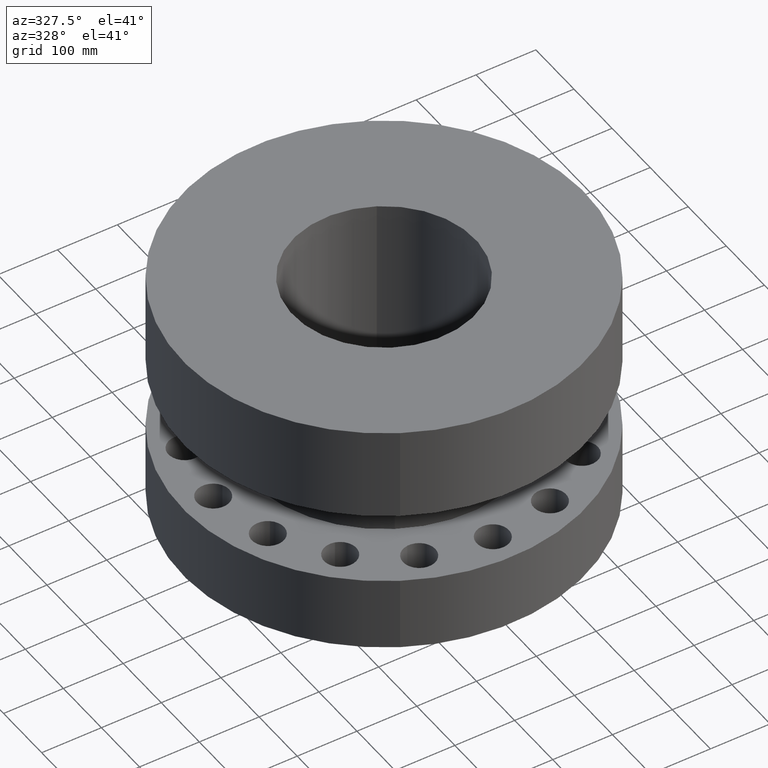
[diagram: clean part render]
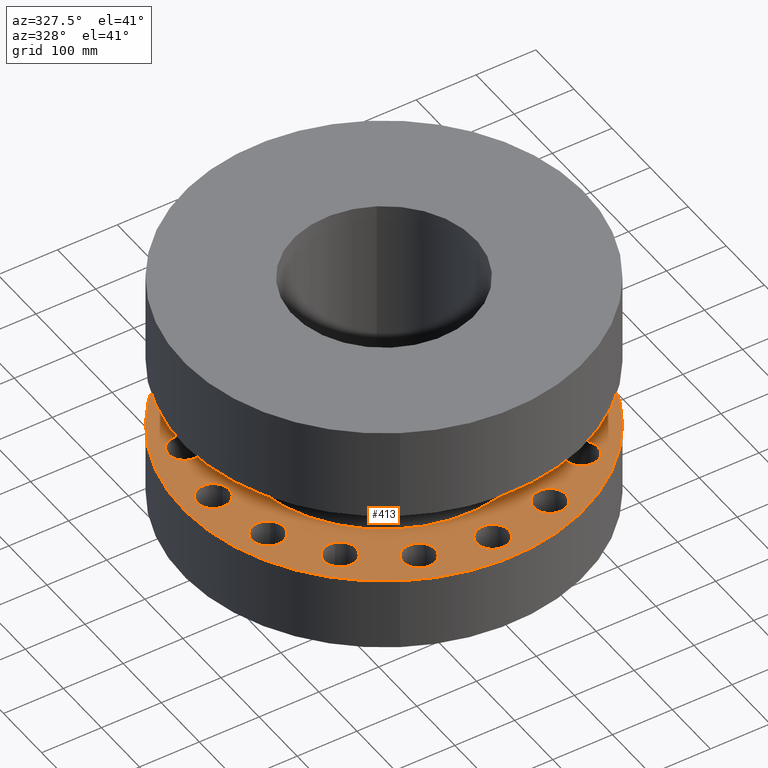
[diagram: same view with one face highlighted and labeled with its STEP entity id]
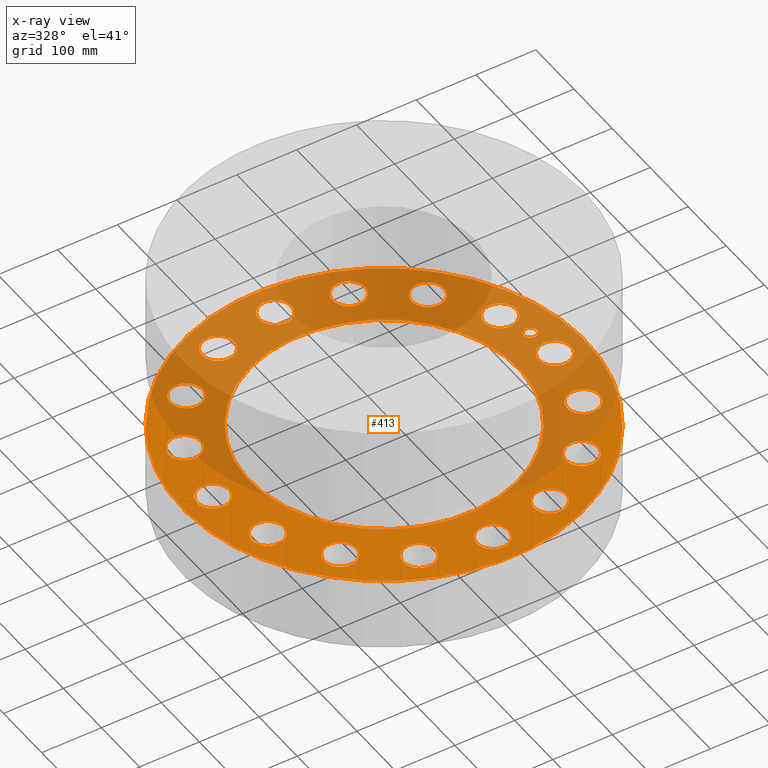
[diagram: x-ray of the same camera — body ghosted, the highlighted face saturated]
A machine part, auxiliary view. The second image highlights one B-rep face of the part: STEP entity #413.
The next image is the same camera in x-ray: the body ghosted, the highlighted face saturated — about 56% of this face is hidden behind the body in this view.
In plain terms, the highlighted planar face has unit normal (0, 0, -1).
Its self-contained STEP definition (entity closure, byte-faithful):
#65=AXIS2_PLACEMENT_3D('Circle Axis2P3D',#63,#64,$) ;
#78=AXIS2_PLACEMENT_3D('Plane Axis2P3D',#75,#76,#77) ;
#82=AXIS2_PLACEMENT_3D('Circle Axis2P3D',#80,#81,$) ;
#91=AXIS2_PLACEMENT_3D('Circle Axis2P3D',#89,#90,$) ;
#100=AXIS2_PLACEMENT_3D('Circle Axis2P3D',#98,#99,$) ;
#109=AXIS2_PLACEMENT_3D('Circle Axis2P3D',#107,#108,$) ;
#118=AXIS2_PLACEMENT_3D('Circle Axis2P3D',#116,#117,$) ;
#127=AXIS2_PLACEMENT_3D('Circle Axis2P3D',#125,#126,$) ;
#136=AXIS2_PLACEMENT_3D('Circle Axis2P3D',#134,#135,$) ;
#145=AXIS2_PLACEMENT_3D('Circle Axis2P3D',#143,#144,$) ;
#154=AXIS2_PLACEMENT_3D('Circle Axis2P3D',#152,#153,$) ;
#163=AXIS2_PLACEMENT_3D('Circle Axis2P3D',#161,#162,$) ;
#172=AXIS2_PLACEMENT_3D('Circle Axis2P3D',#170,#171,$) ;
#181=AXIS2_PLACEMENT_3D('Circle Axis2P3D',#179,#180,$) ;
#190=AXIS2_PLACEMENT_3D('Circle Axis2P3D',#188,#189,$) ;
#199=AXIS2_PLACEMENT_3D('Circle Axis2P3D',#197,#198,$) ;
#208=AXIS2_PLACEMENT_3D('Circle Axis2P3D',#206,#207,$) ;
#217=AXIS2_PLACEMENT_3D('Circle Axis2P3D',#215,#216,$) ;
#226=AXIS2_PLACEMENT_3D('Circle Axis2P3D',#224,#225,$) ;
#235=AXIS2_PLACEMENT_3D('Circle Axis2P3D',#233,#234,$) ;
#244=AXIS2_PLACEMENT_3D('Circle Axis2P3D',#242,#243,$) ;
#253=AXIS2_PLACEMENT_3D('Circle Axis2P3D',#251,#252,$) ;
#262=AXIS2_PLACEMENT_3D('Circle Axis2P3D',#260,#261,$) ;
#271=AXIS2_PLACEMENT_3D('Circle Axis2P3D',#269,#270,$) ;
#280=AXIS2_PLACEMENT_3D('Circle Axis2P3D',#278,#279,$) ;
#289=AXIS2_PLACEMENT_3D('Circle Axis2P3D',#287,#288,$) ;
#298=AXIS2_PLACEMENT_3D('Circle Axis2P3D',#296,#297,$) ;
#307=AXIS2_PLACEMENT_3D('Circle Axis2P3D',#305,#306,$) ;
#316=AXIS2_PLACEMENT_3D('Circle Axis2P3D',#314,#315,$) ;
#325=AXIS2_PLACEMENT_3D('Circle Axis2P3D',#323,#324,$) ;
#334=AXIS2_PLACEMENT_3D('Circle Axis2P3D',#332,#333,$) ;
#343=AXIS2_PLACEMENT_3D('Circle Axis2P3D',#341,#342,$) ;
#352=AXIS2_PLACEMENT_3D('Circle Axis2P3D',#350,#351,$) ;
#361=AXIS2_PLACEMENT_3D('Circle Axis2P3D',#359,#360,$) ;
#370=AXIS2_PLACEMENT_3D('Circle Axis2P3D',#368,#369,$) ;
#379=AXIS2_PLACEMENT_3D('Circle Axis2P3D',#377,#378,$) ;
#388=AXIS2_PLACEMENT_3D('Circle Axis2P3D',#386,#387,$) ;
#397=AXIS2_PLACEMENT_3D('Circle Axis2P3D',#395,#396,$) ;
#406=AXIS2_PLACEMENT_3D('Circle Axis2P3D',#404,#405,$) ;
#44=CARTESIAN_POINT('Vertex',(12.1802375157,0.508191070922,4.88000000002)) ;
#60=CARTESIAN_POINT('Vertex',(10.3197624844,-0.508191070922,4.88000000002)) ;
#63=CARTESIAN_POINT('Axis2P3D Location',(11.25,0.,4.88000000002)) ;
#75=CARTESIAN_POINT('Axis2P3D Location',(0.,13.2500000001,4.88000000002)) ;
#80=CARTESIAN_POINT('Axis2P3D Location',(0.,0.,4.88000000002)) ;
#84=CARTESIAN_POINT('Vertex',(6.35238838653,11.6279689451,4.88000000002)) ;
#86=CARTESIAN_POINT('Vertex',(-6.35238838653,-11.6279689451,4.88000000002)) ;
#89=CARTESIAN_POINT('Axis2P3D Location',(0.,0.,4.88000000002)) ;
#98=CARTESIAN_POINT('Axis2P3D Location',(11.25,0.,4.88000000002)) ;
#107=CARTESIAN_POINT('Axis2P3D Location',(0.,0.,4.88000000002)) ;
#111=CARTESIAN_POINT('Vertex',(-4.24771027205,-7.77538149838,4.88000000002)) ;
#113=CARTESIAN_POINT('Vertex',(4.24771027205,7.77538149838,4.88000000002)) ;
#116=CARTESIAN_POINT('Axis2P3D Location',(0.,0.,4.88000000002)) ;
#125=CARTESIAN_POINT('Axis2P3D Location',(10.3936447408,-4.30518861412,4.88000000002)) ;
#129=CARTESIAN_POINT('Vertex',(9.33974103643,-4.41870945777,4.88000000002)) ;
#131=CARTESIAN_POINT('Vertex',(11.4475484452,-4.19166777048,4.88000000002)) ;
#134=CARTESIAN_POINT('Axis2P3D Location',(10.3936447408,-4.30518861412,4.88000000002)) ;
#143=CARTESIAN_POINT('Axis2P3D Location',(7.95495128838,-7.95495128838,4.88000000002)) ;
#147=CARTESIAN_POINT('Vertex',(6.93782868059,-7.65651938537,4.88000000002)) ;
#149=CARTESIAN_POINT('Vertex',(8.97207389617,-8.25338319139,4.88000000002)) ;
#152=CARTESIAN_POINT('Axis2P3D Location',(7.95495128838,-7.95495128838,4.88000000002)) ;
#161=CARTESIAN_POINT('Axis2P3D Location',(4.30518861412,-10.3936447408,4.88000000002)) ;
#165=CARTESIAN_POINT('Vertex',(3.47969479971,-9.72869364307,4.88000000002)) ;
#167=CARTESIAN_POINT('Vertex',(5.13068242854,-11.0585958385,4.88000000002)) ;
#170=CARTESIAN_POINT('Axis2P3D Location',(4.30518861412,-10.3936447408,4.88000000002)) ;
#179=CARTESIAN_POINT('Axis2P3D Location',(-1.67844740731E-015,-11.25,4.88000000002)) ;
#183=CARTESIAN_POINT('Vertex',(-0.508191070922,-10.3197624844,4.88000000002)) ;
#185=CARTESIAN_POINT('Vertex',(0.508191070922,-12.1802375157,4.88000000002)) ;
#188=CARTESIAN_POINT('Axis2P3D Location',(4.19611851827E-016,-11.25,4.88000000002)) ;
#197=CARTESIAN_POINT('Axis2P3D Location',(-4.30518861412,-10.3936447408,4.88000000002)) ;
#201=CARTESIAN_POINT('Vertex',(-4.41870945777,-9.33974103643,4.88000000002)) ;
#203=CARTESIAN_POINT('Vertex',(-4.19166777048,-11.4475484452,4.88000000002)) ;
#206=CARTESIAN_POINT('Axis2P3D Location',(-4.30518861412,-10.3936447408,4.88000000002)) ;
#215=CARTESIAN_POINT('Axis2P3D Location',(-7.95495128838,-7.95495128838,4.88000000002)) ;
#219=CARTESIAN_POINT('Vertex',(-7.65651938537,-6.93782868059,4.88000000002)) ;
#221=CARTESIAN_POINT('Vertex',(-8.25338319139,-8.97207389617,4.88000000002)) ;
#224=CARTESIAN_POINT('Axis2P3D Location',(-7.95495128838,-7.95495128838,4.88000000002)) ;
#233=CARTESIAN_POINT('Axis2P3D Location',(-10.3936447408,-4.30518861412,4.88000000002)) ;
#237=CARTESIAN_POINT('Vertex',(-9.72869364307,-3.47969479971,4.88000000002)) ;
#239=CARTESIAN_POINT('Vertex',(-11.0585958385,-5.13068242854,4.88000000002)) ;
#242=CARTESIAN_POINT('Axis2P3D Location',(-10.3936447408,-4.30518861412,4.88000000002)) ;
#251=CARTESIAN_POINT('Axis2P3D Location',(-11.25,-2.23792987641E-015,4.88000000002)) ;
#255=CARTESIAN_POINT('Vertex',(-10.3197624844,0.508191070922,4.88000000002)) ;
#257=CARTESIAN_POINT('Vertex',(-12.1802375157,-0.508191070922,4.88000000002)) ;
#260=CARTESIAN_POINT('Axis2P3D Location',(-11.25,0.,4.88000000002)) ;
#269=CARTESIAN_POINT('Axis2P3D Location',(-10.3936447408,4.30518861412,4.88000000002)) ;
#273=CARTESIAN_POINT('Vertex',(-9.33974103643,4.41870945777,4.88000000002)) ;
#275=CARTESIAN_POINT('Vertex',(-11.4475484452,4.19166777048,4.88000000002)) ;
#278=CARTESIAN_POINT('Axis2P3D Location',(-10.3936447408,4.30518861412,4.88000000002)) ;
#287=CARTESIAN_POINT('Axis2P3D Location',(-7.95495128838,7.95495128838,4.88000000002)) ;
#291=CARTESIAN_POINT('Vertex',(-6.93782868059,7.65651938537,4.88000000002)) ;
#293=CARTESIAN_POINT('Vertex',(-8.97207389617,8.25338319139,4.88000000002)) ;
#296=CARTESIAN_POINT('Axis2P3D Location',(-7.95495128838,7.95495128838,4.88000000002)) ;
#305=CARTESIAN_POINT('Axis2P3D Location',(-4.30518861412,10.3936447408,4.88000000002)) ;
#309=CARTESIAN_POINT('Vertex',(-3.47969479971,9.72869364307,4.88000000002)) ;
#311=CARTESIAN_POINT('Vertex',(-5.13068242854,11.0585958385,4.88000000002)) ;
#314=CARTESIAN_POINT('Axis2P3D Location',(-4.30518861412,10.3936447408,4.88000000002)) ;
#323=CARTESIAN_POINT('Axis2P3D Location',(-3.07715358006E-015,11.25,4.88000000002)) ;
#327=CARTESIAN_POINT('Vertex',(0.508191070922,10.3197624844,4.88000000002)) ;
#329=CARTESIAN_POINT('Vertex',(-0.508191070922,12.1802375157,4.88000000002)) ;
#332=CARTESIAN_POINT('Axis2P3D Location',(-2.93728296279E-015,11.25,4.88000000002)) ;
#341=CARTESIAN_POINT('Axis2P3D Location',(4.30518861412,10.3936447408,4.88000000002)) ;
#345=CARTESIAN_POINT('Vertex',(4.41870945777,9.33974103643,4.88000000002)) ;
#347=CARTESIAN_POINT('Vertex',(4.19166777048,11.4475484452,4.88000000002)) ;
#350=CARTESIAN_POINT('Axis2P3D Location',(4.30518861412,10.3936447408,4.88000000002)) ;
#359=CARTESIAN_POINT('Axis2P3D Location',(7.95495128838,7.95495128838,4.88000000002)) ;
#363=CARTESIAN_POINT('Vertex',(7.65651938537,6.93782868059,4.88000000002)) ;
#365=CARTESIAN_POINT('Vertex',(8.25338319139,8.97207389617,4.88000000002)) ;
#368=CARTESIAN_POINT('Axis2P3D Location',(7.95495128838,7.95495128838,4.88000000002)) ;
#377=CARTESIAN_POINT('Axis2P3D Location',(10.3936447408,4.30518861412,4.88000000002)) ;
#381=CARTESIAN_POINT('Vertex',(9.72869364307,3.47969479971,4.88000000002)) ;
#383=CARTESIAN_POINT('Vertex',(11.0585958385,5.13068242854,4.88000000002)) ;
#386=CARTESIAN_POINT('Axis2P3D Location',(10.3936447408,4.30518861412,4.88000000002)) ;
#395=CARTESIAN_POINT('Axis2P3D Location',(11.0338344046,2.19476612269,4.88000000002)) ;
#399=CARTESIAN_POINT('Vertex',(11.1167477906,1.77793238269,4.88000000002)) ;
#401=CARTESIAN_POINT('Vertex',(10.9509210186,2.61159986269,4.88000000002)) ;
#404=CARTESIAN_POINT('Axis2P3D Location',(11.0338344046,2.19476612269,4.88000000002)) ;
#64=DIRECTION('Axis2P3D Direction',(0.,-0.,0.0393700787402)) ;
#76=DIRECTION('Axis2P3D Direction',(0.,0.,-0.0393700787402)) ;
#77=DIRECTION('Axis2P3D XDirection',(0.0393700787402,0.,0.)) ;
#81=DIRECTION('Axis2P3D Direction',(0.,0.,-0.0393700787402)) ;
#90=DIRECTION('Axis2P3D Direction',(0.,0.,-0.0393700787402)) ;
#99=DIRECTION('Axis2P3D Direction',(0.,0.,-0.0393700787402)) ;
#108=DIRECTION('Axis2P3D Direction',(0.,0.,-0.0393700787402)) ;
#117=DIRECTION('Axis2P3D Direction',(0.,0.,-0.0393700787402)) ;
#126=DIRECTION('Axis2P3D Direction',(0.,0.,-0.0393700787402)) ;
#135=DIRECTION('Axis2P3D Direction',(0.,0.,-0.0393700787402)) ;
#144=DIRECTION('Axis2P3D Direction',(0.,0.,-0.0393700787402)) ;
#153=DIRECTION('Axis2P3D Direction',(0.,0.,-0.0393700787402)) ;
#162=DIRECTION('Axis2P3D Direction',(0.,0.,-0.0393700787402)) ;
#171=DIRECTION('Axis2P3D Direction',(0.,0.,-0.0393700787402)) ;
#180=DIRECTION('Axis2P3D Direction',(0.,0.,-0.0393700787402)) ;
#189=DIRECTION('Axis2P3D Direction',(0.,0.,-0.0393700787402)) ;
#198=DIRECTION('Axis2P3D Direction',(0.,0.,-0.0393700787402)) ;
#207=DIRECTION('Axis2P3D Direction',(0.,0.,-0.0393700787402)) ;
#216=DIRECTION('Axis2P3D Direction',(0.,0.,-0.0393700787402)) ;
#225=DIRECTION('Axis2P3D Direction',(0.,0.,-0.0393700787402)) ;
#234=DIRECTION('Axis2P3D Direction',(0.,0.,-0.0393700787402)) ;
#243=DIRECTION('Axis2P3D Direction',(0.,0.,-0.0393700787402)) ;
#252=DIRECTION('Axis2P3D Direction',(0.,0.,-0.0393700787402)) ;
#261=DIRECTION('Axis2P3D Direction',(0.,0.,-0.0393700787402)) ;
#270=DIRECTION('Axis2P3D Direction',(0.,0.,-0.0393700787402)) ;
#279=DIRECTION('Axis2P3D Direction',(0.,0.,-0.0393700787402)) ;
#288=DIRECTION('Axis2P3D Direction',(0.,0.,-0.0393700787402)) ;
#297=DIRECTION('Axis2P3D Direction',(0.,0.,-0.0393700787402)) ;
#306=DIRECTION('Axis2P3D Direction',(0.,0.,-0.0393700787402)) ;
#315=DIRECTION('Axis2P3D Direction',(0.,0.,-0.0393700787402)) ;
#324=DIRECTION('Axis2P3D Direction',(0.,0.,-0.0393700787402)) ;
#333=DIRECTION('Axis2P3D Direction',(0.,0.,-0.0393700787402)) ;
#342=DIRECTION('Axis2P3D Direction',(0.,0.,-0.0393700787402)) ;
#351=DIRECTION('Axis2P3D Direction',(0.,0.,-0.0393700787402)) ;
#360=DIRECTION('Axis2P3D Direction',(0.,0.,-0.0393700787402)) ;
#369=DIRECTION('Axis2P3D Direction',(0.,0.,-0.0393700787402)) ;
#378=DIRECTION('Axis2P3D Direction',(0.,0.,-0.0393700787402)) ;
#387=DIRECTION('Axis2P3D Direction',(0.,0.,-0.0393700787402)) ;
#396=DIRECTION('Axis2P3D Direction',(0.,0.,-0.0393700787402)) ;
#405=DIRECTION('Axis2P3D Direction',(0.,0.,-0.0393700787402)) ;
#95=ORIENTED_EDGE('',*,*,#88,.F.) ;
#96=ORIENTED_EDGE('',*,*,#93,.F.) ;
#104=ORIENTED_EDGE('',*,*,#67,.T.) ;
#105=ORIENTED_EDGE('',*,*,#102,.T.) ;
#122=ORIENTED_EDGE('',*,*,#115,.T.) ;
#123=ORIENTED_EDGE('',*,*,#120,.T.) ;
#140=ORIENTED_EDGE('',*,*,#133,.T.) ;
#141=ORIENTED_EDGE('',*,*,#138,.T.) ;
#158=ORIENTED_EDGE('',*,*,#151,.T.) ;
#159=ORIENTED_EDGE('',*,*,#156,.T.) ;
#176=ORIENTED_EDGE('',*,*,#169,.T.) ;
#177=ORIENTED_EDGE('',*,*,#174,.T.) ;
#194=ORIENTED_EDGE('',*,*,#187,.T.) ;
#195=ORIENTED_EDGE('',*,*,#192,.T.) ;
#212=ORIENTED_EDGE('',*,*,#205,.T.) ;
#213=ORIENTED_EDGE('',*,*,#210,.T.) ;
#230=ORIENTED_EDGE('',*,*,#223,.T.) ;
#231=ORIENTED_EDGE('',*,*,#228,.T.) ;
#248=ORIENTED_EDGE('',*,*,#241,.T.) ;
#249=ORIENTED_EDGE('',*,*,#246,.T.) ;
#266=ORIENTED_EDGE('',*,*,#259,.T.) ;
#267=ORIENTED_EDGE('',*,*,#264,.T.) ;
#284=ORIENTED_EDGE('',*,*,#277,.T.) ;
#285=ORIENTED_EDGE('',*,*,#282,.T.) ;
#302=ORIENTED_EDGE('',*,*,#295,.T.) ;
#303=ORIENTED_EDGE('',*,*,#300,.T.) ;
#320=ORIENTED_EDGE('',*,*,#313,.T.) ;
#321=ORIENTED_EDGE('',*,*,#318,.T.) ;
#338=ORIENTED_EDGE('',*,*,#331,.T.) ;
#339=ORIENTED_EDGE('',*,*,#336,.T.) ;
#356=ORIENTED_EDGE('',*,*,#349,.T.) ;
#357=ORIENTED_EDGE('',*,*,#354,.T.) ;
#374=ORIENTED_EDGE('',*,*,#367,.T.) ;
#375=ORIENTED_EDGE('',*,*,#372,.T.) ;
#392=ORIENTED_EDGE('',*,*,#385,.T.) ;
#393=ORIENTED_EDGE('',*,*,#390,.T.) ;
#410=ORIENTED_EDGE('',*,*,#403,.F.) ;
#411=ORIENTED_EDGE('',*,*,#408,.F.) ;
#106=FACE_BOUND('',#103,.T.) ;
#124=FACE_BOUND('',#121,.T.) ;
#142=FACE_BOUND('',#139,.T.) ;
#160=FACE_BOUND('',#157,.T.) ;
#178=FACE_BOUND('',#175,.T.) ;
#196=FACE_BOUND('',#193,.T.) ;
#214=FACE_BOUND('',#211,.T.) ;
#232=FACE_BOUND('',#229,.T.) ;
#250=FACE_BOUND('',#247,.T.) ;
#268=FACE_BOUND('',#265,.T.) ;
#286=FACE_BOUND('',#283,.T.) ;
#304=FACE_BOUND('',#301,.T.) ;
#322=FACE_BOUND('',#319,.T.) ;
#340=FACE_BOUND('',#337,.T.) ;
#358=FACE_BOUND('',#355,.T.) ;
#376=FACE_BOUND('',#373,.T.) ;
#394=FACE_BOUND('',#391,.T.) ;
#412=FACE_BOUND('',#409,.T.) ;
#413=ADVANCED_FACE('PartBody',(#97,#106,#124,#142,#160,#178,#196,#214,#232,#250,#268,#286,#304,#322,#340,#358,#376,#394,#412),#79,.F.) ;
#66=CIRCLE('generated circle',#65,1.06) ;
#83=CIRCLE('generated circle',#82,13.2500000001) ;
#92=CIRCLE('generated circle',#91,13.2500000001) ;
#101=CIRCLE('generated circle',#100,1.06) ;
#110=CIRCLE('generated circle',#109,8.86000000004) ;
#119=CIRCLE('generated circle',#118,8.86000000004) ;
#128=CIRCLE('generated circle',#127,1.06) ;
#137=CIRCLE('generated circle',#136,1.06) ;
#146=CIRCLE('generated circle',#145,1.06) ;
#155=CIRCLE('generated circle',#154,1.06) ;
#164=CIRCLE('generated circle',#163,1.06) ;
#173=CIRCLE('generated circle',#172,1.06) ;
#182=CIRCLE('generated circle',#181,1.06) ;
#191=CIRCLE('generated circle',#190,1.06) ;
#200=CIRCLE('generated circle',#199,1.06) ;
#209=CIRCLE('generated circle',#208,1.06) ;
#218=CIRCLE('generated circle',#217,1.06) ;
#227=CIRCLE('generated circle',#226,1.06) ;
#236=CIRCLE('generated circle',#235,1.06) ;
#245=CIRCLE('generated circle',#244,1.06) ;
#254=CIRCLE('generated circle',#253,1.06) ;
#263=CIRCLE('generated circle',#262,1.06) ;
#272=CIRCLE('generated circle',#271,1.06) ;
#281=CIRCLE('generated circle',#280,1.06) ;
#290=CIRCLE('generated circle',#289,1.06) ;
#299=CIRCLE('generated circle',#298,1.06) ;
#308=CIRCLE('generated circle',#307,1.06) ;
#317=CIRCLE('generated circle',#316,1.06) ;
#326=CIRCLE('generated circle',#325,1.06) ;
#335=CIRCLE('generated circle',#334,1.06) ;
#344=CIRCLE('generated circle',#343,1.06) ;
#353=CIRCLE('generated circle',#352,1.06) ;
#362=CIRCLE('generated circle',#361,1.06) ;
#371=CIRCLE('generated circle',#370,1.06) ;
#380=CIRCLE('generated circle',#379,1.06) ;
#389=CIRCLE('generated circle',#388,1.06) ;
#398=CIRCLE('generated circle',#397,0.424999995752) ;
#407=CIRCLE('generated circle',#406,0.424999995752) ;
#67=EDGE_CURVE('',#45,#61,#66,.F.) ;
#88=EDGE_CURVE('',#85,#87,#83,.T.) ;
#93=EDGE_CURVE('',#87,#85,#92,.T.) ;
#102=EDGE_CURVE('',#61,#45,#101,.T.) ;
#115=EDGE_CURVE('',#112,#114,#110,.T.) ;
#120=EDGE_CURVE('',#114,#112,#119,.T.) ;
#133=EDGE_CURVE('',#130,#132,#128,.T.) ;
#138=EDGE_CURVE('',#132,#130,#137,.T.) ;
#151=EDGE_CURVE('',#148,#150,#146,.T.) ;
#156=EDGE_CURVE('',#150,#148,#155,.T.) ;
#169=EDGE_CURVE('',#166,#168,#164,.T.) ;
#174=EDGE_CURVE('',#168,#166,#173,.T.) ;
#187=EDGE_CURVE('',#184,#186,#182,.T.) ;
#192=EDGE_CURVE('',#186,#184,#191,.T.) ;
#205=EDGE_CURVE('',#202,#204,#200,.T.) ;
#210=EDGE_CURVE('',#204,#202,#209,.T.) ;
#223=EDGE_CURVE('',#220,#222,#218,.T.) ;
#228=EDGE_CURVE('',#222,#220,#227,.T.) ;
#241=EDGE_CURVE('',#238,#240,#236,.T.) ;
#246=EDGE_CURVE('',#240,#238,#245,.T.) ;
#259=EDGE_CURVE('',#256,#258,#254,.T.) ;
#264=EDGE_CURVE('',#258,#256,#263,.T.) ;
#277=EDGE_CURVE('',#274,#276,#272,.T.) ;
#282=EDGE_CURVE('',#276,#274,#281,.T.) ;
#295=EDGE_CURVE('',#292,#294,#290,.T.) ;
#300=EDGE_CURVE('',#294,#292,#299,.T.) ;
#313=EDGE_CURVE('',#310,#312,#308,.T.) ;
#318=EDGE_CURVE('',#312,#310,#317,.T.) ;
#331=EDGE_CURVE('',#328,#330,#326,.T.) ;
#336=EDGE_CURVE('',#330,#328,#335,.T.) ;
#349=EDGE_CURVE('',#346,#348,#344,.T.) ;
#354=EDGE_CURVE('',#348,#346,#353,.T.) ;
#367=EDGE_CURVE('',#364,#366,#362,.T.) ;
#372=EDGE_CURVE('',#366,#364,#371,.T.) ;
#385=EDGE_CURVE('',#382,#384,#380,.T.) ;
#390=EDGE_CURVE('',#384,#382,#389,.T.) ;
#403=EDGE_CURVE('',#400,#402,#398,.F.) ;
#408=EDGE_CURVE('',#402,#400,#407,.F.) ;
#94=EDGE_LOOP('',(#95,#96)) ;
#103=EDGE_LOOP('',(#104,#105)) ;
#121=EDGE_LOOP('',(#122,#123)) ;
#139=EDGE_LOOP('',(#140,#141)) ;
#157=EDGE_LOOP('',(#158,#159)) ;
#175=EDGE_LOOP('',(#176,#177)) ;
#193=EDGE_LOOP('',(#194,#195)) ;
#211=EDGE_LOOP('',(#212,#213)) ;
#229=EDGE_LOOP('',(#230,#231)) ;
#247=EDGE_LOOP('',(#248,#249)) ;
#265=EDGE_LOOP('',(#266,#267)) ;
#283=EDGE_LOOP('',(#284,#285)) ;
#301=EDGE_LOOP('',(#302,#303)) ;
#319=EDGE_LOOP('',(#320,#321)) ;
#337=EDGE_LOOP('',(#338,#339)) ;
#355=EDGE_LOOP('',(#356,#357)) ;
#373=EDGE_LOOP('',(#374,#375)) ;
#391=EDGE_LOOP('',(#392,#393)) ;
#409=EDGE_LOOP('',(#410,#411)) ;
#97=FACE_OUTER_BOUND('',#94,.T.) ;
#79=PLANE('',#78) ;
#45=VERTEX_POINT('',#44) ;
#61=VERTEX_POINT('',#60) ;
#85=VERTEX_POINT('',#84) ;
#87=VERTEX_POINT('',#86) ;
#112=VERTEX_POINT('',#111) ;
#114=VERTEX_POINT('',#113) ;
#130=VERTEX_POINT('',#129) ;
#132=VERTEX_POINT('',#131) ;
#148=VERTEX_POINT('',#147) ;
#150=VERTEX_POINT('',#149) ;
#166=VERTEX_POINT('',#165) ;
#168=VERTEX_POINT('',#167) ;
#184=VERTEX_POINT('',#183) ;
#186=VERTEX_POINT('',#185) ;
#202=VERTEX_POINT('',#201) ;
#204=VERTEX_POINT('',#203) ;
#220=VERTEX_POINT('',#219) ;
#222=VERTEX_POINT('',#221) ;
#238=VERTEX_POINT('',#237) ;
#240=VERTEX_POINT('',#239) ;
#256=VERTEX_POINT('',#255) ;
#258=VERTEX_POINT('',#257) ;
#274=VERTEX_POINT('',#273) ;
#276=VERTEX_POINT('',#275) ;
#292=VERTEX_POINT('',#291) ;
#294=VERTEX_POINT('',#293) ;
#310=VERTEX_POINT('',#309) ;
#312=VERTEX_POINT('',#311) ;
#328=VERTEX_POINT('',#327) ;
#330=VERTEX_POINT('',#329) ;
#346=VERTEX_POINT('',#345) ;
#348=VERTEX_POINT('',#347) ;
#364=VERTEX_POINT('',#363) ;
#366=VERTEX_POINT('',#365) ;
#382=VERTEX_POINT('',#381) ;
#384=VERTEX_POINT('',#383) ;
#400=VERTEX_POINT('',#399) ;
#402=VERTEX_POINT('',#401) ;